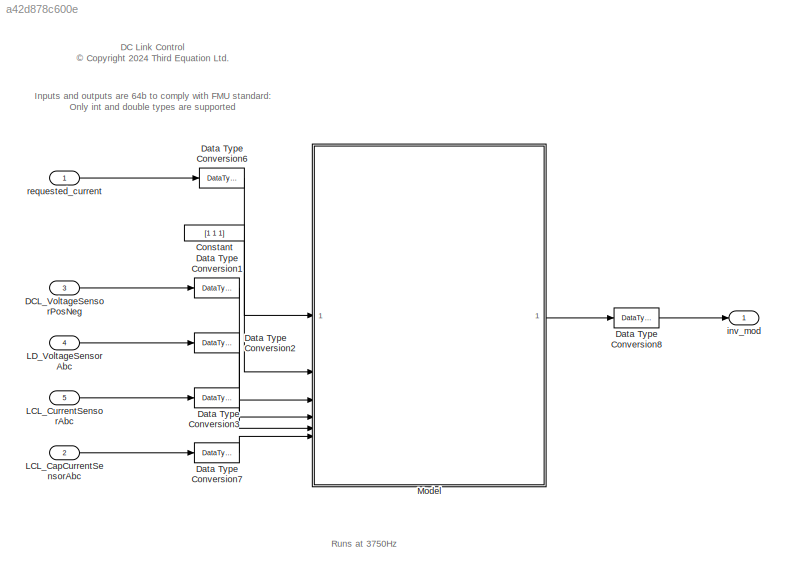
MODEL slx_a42d878c600e
KIND model
BLOCK [Constant] Constant
  OutDataTypeStr = boolean
  Value = [1 1 1]
BLOCK [Inport] DCL_VoltageSensorPosNeg
  OutDataTypeStr = double
  Port = 3
  PortDimensions = 2
BLOCK [DataTypeConversion] Data Type Conversion1
  RndMeth = Floor
  SaturateOnIntegerOverflow = off
BLOCK [DataTypeConversion] Data Type Conversion2
  RndMeth = Floor
  SaturateOnIntegerOverflow = off
BLOCK [DataTypeConversion] Data Type Conversion3
  RndMeth = Floor
  SaturateOnIntegerOverflow = off
BLOCK [DataTypeConversion] Data Type Conversion6
  RndMeth = Floor
  SaturateOnIntegerOverflow = off
BLOCK [DataTypeConversion] Data Type Conversion7
  RndMeth = Floor
  SaturateOnIntegerOverflow = off
BLOCK [DataTypeConversion] Data Type Conversion8
  RndMeth = Floor
  SaturateOnIntegerOverflow = off
BLOCK [Inport] LCL_CapCurrentSensorAbc
  OutDataTypeStr = double
  Port = 2
  PortDimensions = 3
BLOCK [Inport] LCL_CurrentSensorAbc
  OutDataTypeStr = double
  Port = 5
  PortDimensions = 3
BLOCK [Inport] LD_VoltageSensorAbc
  OutDataTypeStr = double
  Port = 4
  PortDimensions = 3
BLOCK [ModelReference] Model
  CopyOfModelProtected = on
  ModelNameDialog = I_core_control_protected.slxp
  ModelReferenceVersion = 1.28
BLOCK [Outport] inv_mod
  OutDataTypeStr = double
  PortDimensions = 3
BLOCK [Inport] requested_current
  OutDataTypeStr = double
  PortDimensions = 3
ANNOTATION (root): DC Link Control <copyright redacted>
ANNOTATION (root): Inputs and outputs are 64b to comply with FMU standard: Only int and double types are supported
ANNOTATION (root): Runs at 3750Hz
LINE Constant:1 -> Model:2
LINE DCL_VoltageSensorPosNeg:1 -> Data Type Conversion1:1
LINE Data Type Conversion1:1 -> Model:3
LINE Data Type Conversion2:1 -> Model:4
LINE Data Type Conversion3:1 -> Model:5
LINE Data Type Conversion6:1 -> Model:1
LINE Data Type Conversion7:1 -> Model:6
LINE Data Type Conversion8:1 -> inv_mod:1
LINE LCL_CapCurrentSensorAbc:1 -> Data Type Conversion7:1
LINE LCL_CurrentSensorAbc:1 -> Data Type Conversion3:1
LINE LD_VoltageSensorAbc:1 -> Data Type Conversion2:1
LINE Model:1 -> Data Type Conversion8:1
LINE requested_current:1 -> Data Type Conversion6:1
